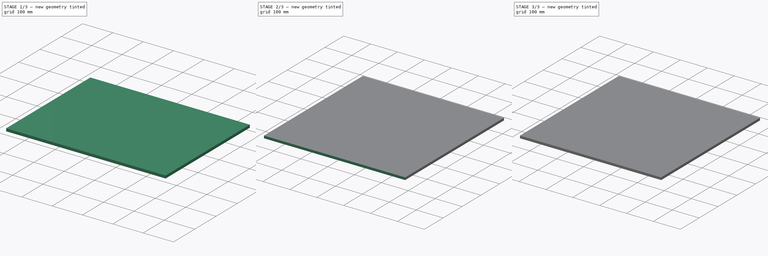
[diagram: build sequence overview — one tinted view per stage of 3, left to right]
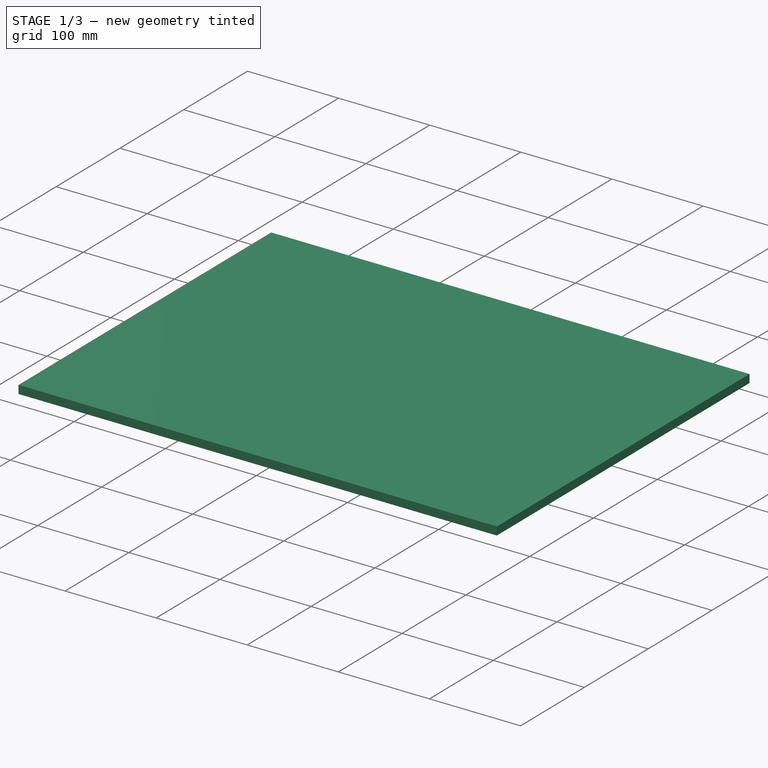
[diagram: stage 1 of 3 — iso view after this stage's code; geometry added in this stage tinted green]
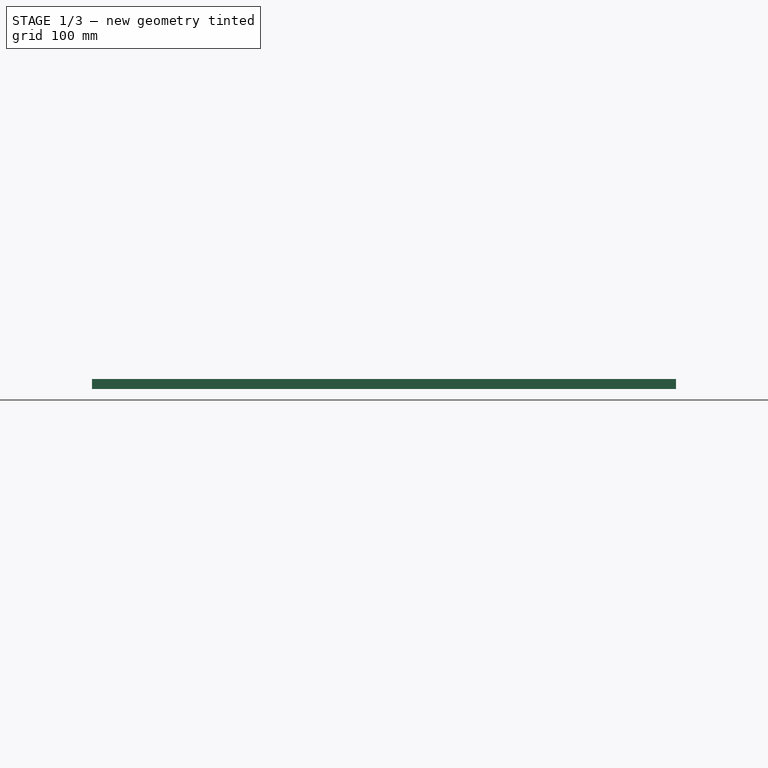
[diagram: stage 1 of 3 — front view after this stage's code; geometry added in this stage tinted green]
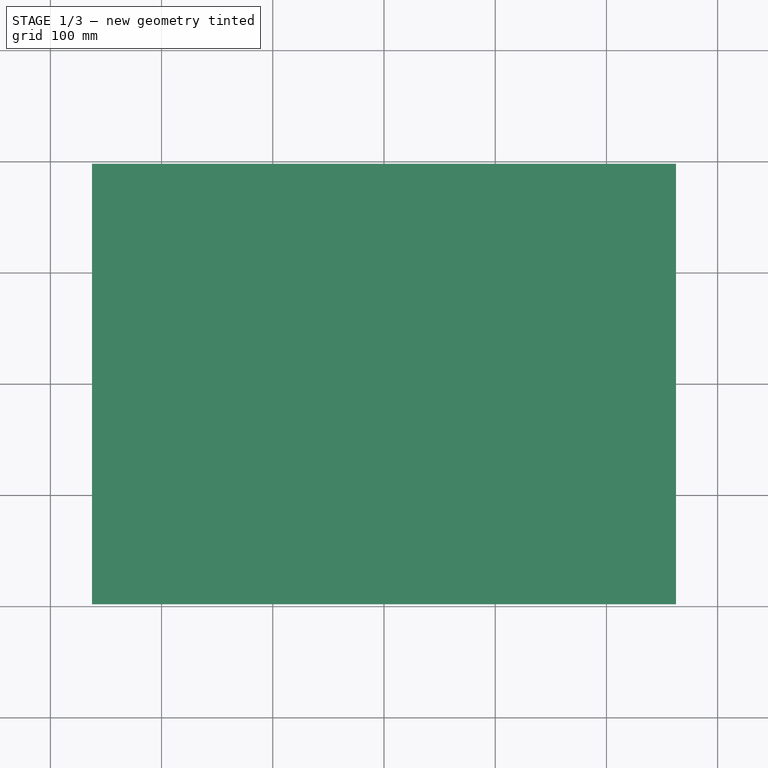
[diagram: stage 1 of 3 — top view after this stage's code; geometry added in this stage tinted green]
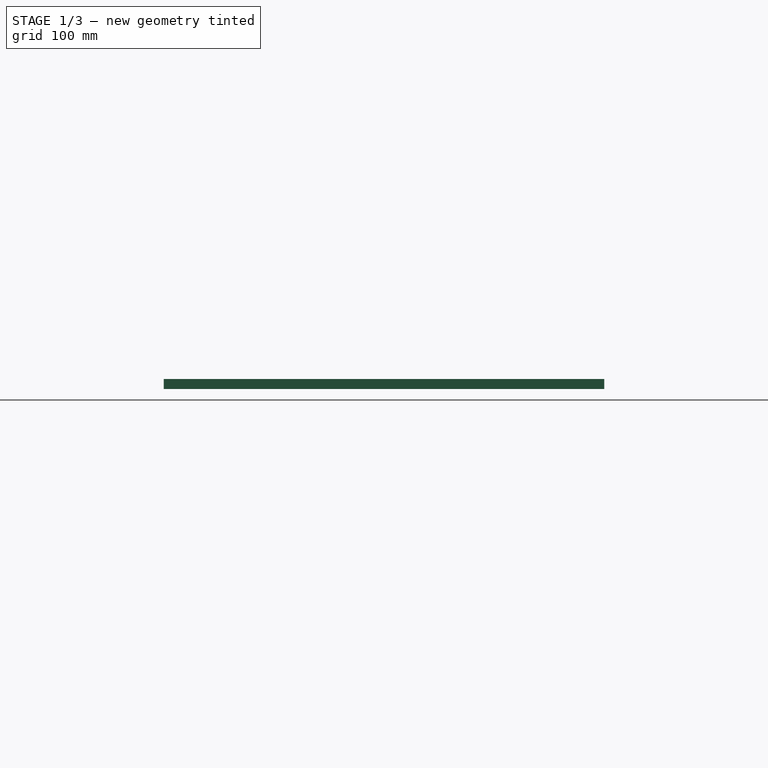
[diagram: stage 1 of 3 — right view after this stage's code; geometry added in this stage tinted green]
FCSTD DOCUMENT  (FreeCAD 0.19R22756 (Git))
Label: storage-matrix
License: All rights reserved
LicenseURL: http://en.wikipedia.org/wiki/All_rights_reserved
objects: PartDesign::CoordinateSystem×25, App::Link×14, Sketcher::SketchObject×8, PartDesign::Pad×7, PartDesign::Body×7, App::DocumentObjectGroup×2, App::FeaturePython×1, App::Part×1
note: 54 computed .brp shape members not serialized (recipe doc carries the construction recipe); baked Part::Feature solids carry a one-line shape summary decoded from their .brp

FEATURE [PartDesign::CoordinateSystem] right
  AttacherType = Attacher::AttachEngine3D
  MapMode = 5
  Placement = pos=(0,0,9) rot=(0,0,1;0rad)
  Support = -> [Pad]
FEATURE [PartDesign::Body] small
  Group = -> [LCS_0,Sketch,Pad,right]
  Origin = -> Origin001
  Tip = -> Pad
FEATURE [App::Link] small001
  AssemblyType = Asm4EE
  AttachedBy = #LCS_0
  AttachedTo = Parent Assembly#LCS_Origin
  AttachmentOffset = pos=(0,0,0) rot=(0,1,0;1.5708rad)
  LinkPlacement = pos=(0,0,0) rot=(0,1,0;1.5708rad)
  LinkedObject = -> small
  Placement = pos=(0,0,0) rot=(0,1,0;1.5708rad)
  expr: Placement = LCS_Origin.Placement * AttachmentOffset * LCS_0.Placement ^ -1
FEATURE [App::Link] small002
  AssemblyType = Asm4EE
  AttachedBy = #LCS_0
  AttachedTo = small001#right
  AttachmentOffset = pos=(0,0,120) rot=(0,0,1;0rad)
  LinkPlacement = pos=(129,0,0) rot=(0,1,0;1.5708rad)
  LinkedObject = -> small
  Placement = pos=(129,0,0) rot=(0,1,0;1.5708rad)
  expr: Placement = small001.Placement * right.Placement * AttachmentOffset * LCS_0.Placement ^ -1
FEATURE [App::Link] small003
  AssemblyType = Asm4EE
  AttachedBy = #LCS_0
  AttachedTo = small002#right
  AttachmentOffset = pos=(0,0,120) rot=(0,0,1;0rad)
  LinkPlacement = pos=(258,0,0) rot=(0,1,0;1.5708rad)
  LinkedObject = -> small
  Placement = pos=(258,0,0) rot=(0,1,0;1.5708rad)
  expr: Placement = small002.Placement * right.Placement * AttachmentOffset * LCS_0.Placement ^ -1
FEATURE [PartDesign::CoordinateSystem] LCS_0001
  AttacherType = Attacher::AttachEngine3D
  MapMode = 2
  Support = -> [X_Axis002]
FEATURE [Sketcher::SketchObject] Sketch001
  MapMode = 5
  Support = -> [XY_Plane002]
  expr: Constraints[10] = Constraints[8] / 2
  expr: Constraints[11] = Constraints[9] / 2
  sketch-geometry (4):
    g0: LineSegment StartX=-253.5 StartY=-60 StartZ=0 EndX=253.5 EndY=-60 EndZ=0
    g1: LineSegment StartX=253.5 StartY=-60 StartZ=0 EndX=253.5 EndY=60 EndZ=0
    g2: LineSegment StartX=253.5 StartY=60 StartZ=0 EndX=-253.5 EndY=60 EndZ=0
    g3: LineSegment StartX=-253.5 StartY=60 StartZ=0 EndX=-253.5 EndY=-60 EndZ=0
  constraints (12):
    c: Coincident(g0,g1)
    c: Coincident(g1,g2)
    c: Coincident(g2,g3)
    c: Coincident(g3,g0)
    c: Horizontal(g0)
    c: Horizontal(g2)
    c: Vertical(g1)
    c: Vertical(g3)
    c: Distance(g2) = 507
    c: Distance(g1) = 120
    c: Distance(g2,g-2) = 253.5
    c: Distance(g1,g-1) = 60
FEATURE [PartDesign::Pad] Pad001
  Direction = (1,1,1)
  Length = 9
  Length2 = 100
  Profile = -> Sketch001
  Type = 0
FEATURE [PartDesign::CoordinateSystem] top003
  AttacherType = Attacher::AttachEngine3D
  MapMode = 5
  Placement = pos=(-198,0,0) rot=(0.57735,-0.57735,-0.57735;2.0944rad)
  Support = -> [Pad005]
FEATURE [PartDesign::CoordinateSystem] bottom003
  AttacherType = Attacher::AttachEngine3D
  MapMode = 5
  Placement = pos=(198,0,0) rot=(0.57735,0.57735,0.57735;2.0944rad)
  Support = -> [Pad005]
FEATURE [PartDesign::Body] sideMedium
  Group = -> [Sketch006,Pad005,top003,bottom003]
  Origin = -> Origin006
  Tip = -> Pad005
FEATURE [App::Link] sideMedium001
  AssemblyType = Asm4EE
  AttachedBy = #bottom003
  AttachedTo = verticalLarge001#left
  AttachmentOffset = pos=(0,0,0) rot=(1,0,0;1.5708rad)
  LinkPlacement = pos=(-120,7.1e-15,129) rot=(0.707107,0,-0.707107;3.14159rad)
  LinkedObject = -> sideMedium
  Placement = pos=(-120,7.1e-15,129) rot=(0.707107,0,-0.707107;3.14159rad)
  expr: Placement = verticalLarge001.Placement * left.Placement * AttachmentOffset * bottom003.Placement ^ -1
FEATURE [App::Link] sideMedium002
  AssemblyType = Asm4EE
  AttachedBy = #bottom003
  AttachedTo = verticalLarge001#right001
  AttachmentOffset = pos=(0,0,0) rot=(1,0,0;1.5708rad)
  LinkPlacement = pos=(387,-3.55e-14,129) rot=(0,1,0;1.5708rad)
  LinkedObject = -> sideMedium
  Placement = pos=(387,-3.55e-14,129) rot=(0,1,0;1.5708rad)
  expr: Placement = verticalLarge001.Placement * right001.Placement * AttachmentOffset * bottom003.Placement ^ -1
FEATURE [Sketcher::SketchObject] Sketch007
  MapMode = 5
  Support = -> [XY_Plane007]
  expr: Constraints[11] = Constraints[9] / 2
  expr: Constraints[10] = Constraints[8] / 2
  sketch-geometry (4):
    g0: LineSegment StartX=-262.5 StartY=-198 StartZ=0 EndX=262.5 EndY=-198 EndZ=0
    g1: LineSegment StartX=262.5 StartY=-198 StartZ=0 EndX=262.5 EndY=198 EndZ=0
    g2: LineSegment StartX=262.5 StartY=198 StartZ=0 EndX=-262.5 EndY=198 EndZ=0
    g3: LineSegment StartX=-262.5 StartY=198 StartZ=0 EndX=-262.5 EndY=-198 EndZ=0
  constraints (12):
    c: Coincident(g0,g1)
    c: Coincident(g1,g2)
    c: Coincident(g2,g3)
    c: Coincident(g3,g0)
    c: Horizontal(g0)
    c: Horizontal(g2)
    c: Vertical(g1)
    c: Vertical(g3)
    c: Distance(g2) = 525
    c: Distance(g1) = 396
    c: Distance(g2,g-2) = 262.5
    c: Distance(g1,g-1) = 198
FEATURE [PartDesign::Pad] Pad006
  Direction = (1,1,1)
  Length = 9
  Length2 = 100
  Profile = -> Sketch007
  Type = 0
FEATURE [PartDesign::CoordinateSystem] bottom004
  AttacherType = Attacher::AttachEngine3D
  MapMode = 5
  Placement = pos=(0,-198,0) rot=(1,0,0;1.5708rad)
  Support = -> [Pad006]
FEATURE [PartDesign::Body] BackMedium
  Group = -> [Sketch007,Pad006,bottom004]
  Origin = -> Origin007
  Tip = -> Pad006
FEATURE [App::DocumentObjectGroup] Parts
  Group = -> [small,verticalLarge,verticalMedium,verticalLarge003,back003,sideMedium,BackMedium]
FEATURE [App::Link] BackMedium001
  AssemblyType = Asm4EE
  AttachedBy = #bottom004
  AttachedTo = verticalLarge001#back
  AttachmentOffset = pos=(0,0,0) rot=(1,0,0;1.5708rad)
  LinkPlacement = pos=(133.5,60,129) rot=(0,0.707107,0.707107;3.14159rad)
  LinkedObject = -> BackMedium
  Placement = pos=(133.5,60,129) rot=(0,0.707107,0.707107;3.14159rad)
  expr: Placement = verticalLarge001.Placement * back.Placement * AttachmentOffset * bottom004.Placement ^ -1
FEATURE [App::Part] Model  label="Storage"
  Configuration = 0
  Group = -> [LCS_Origin,Constraints,Variables,small001,small002,small003,verticalLarge001,verticalLarge002,small004,small005,small006,horizontalLarge,small008,horizontalLarge001,sideMedium001,sideMedium002,BackMedium001]
  Origin = -> Origin
  Type = Assembly4 Model
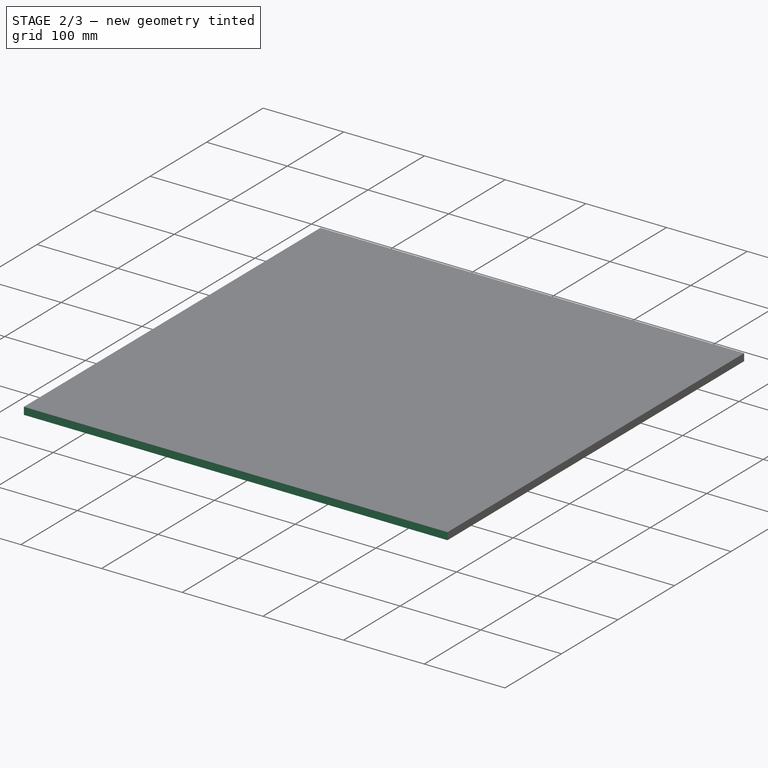
[diagram: stage 2 of 3 — iso view after this stage's code; geometry added in this stage tinted green]
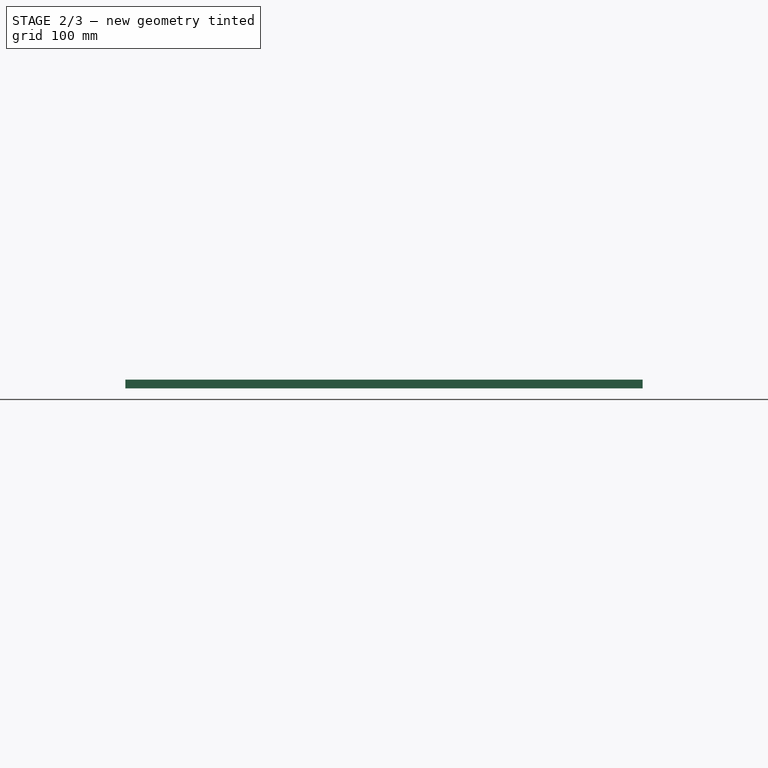
[diagram: stage 2 of 3 — front view after this stage's code; geometry added in this stage tinted green]
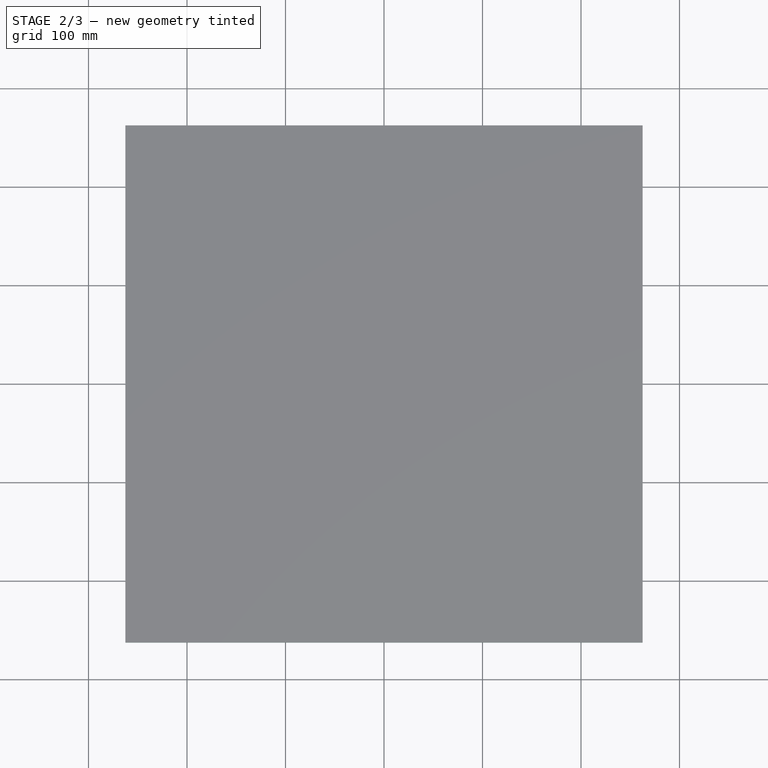
[diagram: stage 2 of 3 — top view after this stage's code; geometry added in this stage tinted green]
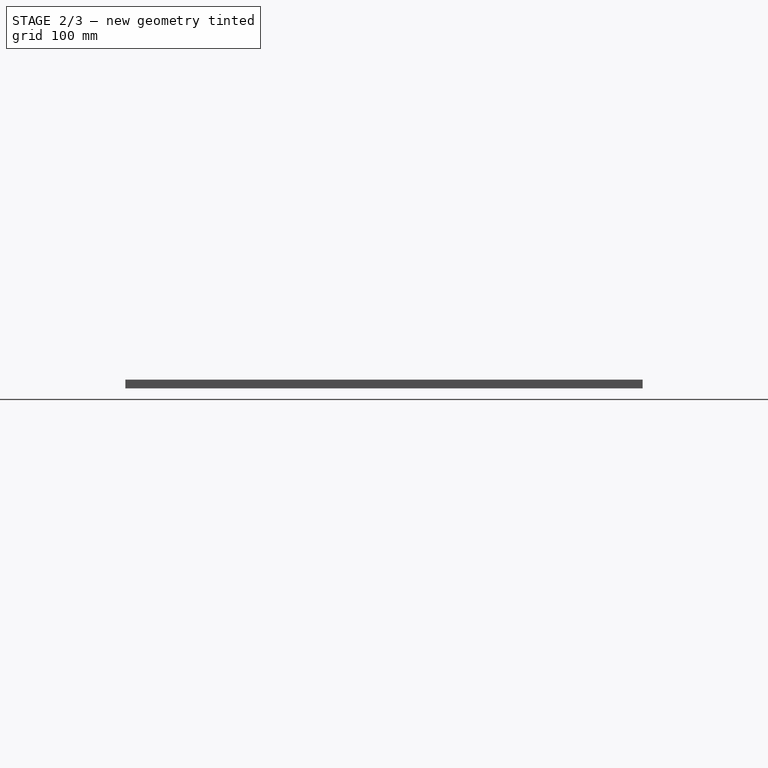
[diagram: stage 2 of 3 — right view after this stage's code; geometry added in this stage tinted green]
FEATURE [PartDesign::CoordinateSystem] LCS_Origin
  AttacherType = Attacher::AttachEngine3D
  MapMode = 2
  Support = -> [X_Axis]
FEATURE [App::DocumentObjectGroup] Constraints
FEATURE [App::FeaturePython] Variables  # WARN: FeaturePython — macro-defined, semantics opaque (R4)
FEATURE [PartDesign::CoordinateSystem] LCS_0
  AttacherType = Attacher::AttachEngine3D
  MapMode = 2
  Support = -> [X_Axis001]
FEATURE [Sketcher::SketchObject] Sketch
  MapMode = 5
  Support = -> [XY_Plane001]
  expr: Constraints[9] = Constraints[8]
  expr: Constraints[10] = Constraints[8] / 2
  expr: Constraints[11] = Constraints[8] / 2
  sketch-geometry (4):
    g0: LineSegment StartX=-60 StartY=-60 StartZ=0 EndX=60 EndY=-60 EndZ=0
    g1: LineSegment StartX=60 StartY=-60 StartZ=0 EndX=60 EndY=60 EndZ=0
    g2: LineSegment StartX=60 StartY=60 StartZ=0 EndX=-60 EndY=60 EndZ=0
    g3: LineSegment StartX=-60 StartY=60 StartZ=0 EndX=-60 EndY=-60 EndZ=0
  constraints (12):
    c: Coincident(g0,g1)
    c: Coincident(g1,g2)
    c: Coincident(g2,g3)
    c: Coincident(g3,g0)
    c: Horizontal(g0)
    c: Horizontal(g2)
    c: Vertical(g1)
    c: Vertical(g3)
    c: Distance(g2) = 120
    c: Distance(g1) = 120
    c: Distance(g2,g-1) = 60
    c: Distance(g1,g-2) = 60
FEATURE [PartDesign::Pad] Pad
  Direction = (1,1,1)
  Length = 9
  Length2 = 100
  Profile = -> Sketch
  Type = 0
FEATURE [PartDesign::CoordinateSystem] top002
  AttacherType = Attacher::AttachEngine3D
  MapMode = 5
  Placement = pos=(-262.5,0,0) rot=(0.57735,-0.57735,-0.57735;2.0944rad)
  Support = -> [Pad003]
FEATURE [PartDesign::CoordinateSystem] bottom001
  AttacherType = Attacher::AttachEngine3D
  MapMode = 5
  Placement = pos=(262.5,0,0) rot=(0.57735,0.57735,0.57735;2.0944rad)
  Support = -> [Pad003]
FEATURE [PartDesign::CoordinateSystem] left002
  AttacherType = Attacher::AttachEngine3D
  MapMode = 5
  Placement = pos=(0,0,0) rot=(1,0,0;3.14159rad)
  Support = -> [Pad003]
FEATURE [PartDesign::CoordinateSystem] right003
  AttacherType = Attacher::AttachEngine3D
  MapMode = 5
  Placement = pos=(0,0,9) rot=(0,0,1;0rad)
  Support = -> [Pad003]
FEATURE [PartDesign::CoordinateSystem] front001
  AttacherType = Attacher::AttachEngine3D
  MapMode = 5
  Placement = pos=(0,-60,0) rot=(1,0,0;1.5708rad)
  Support = -> [Pad003]
FEATURE [PartDesign::CoordinateSystem] back002
  AttacherType = Attacher::AttachEngine3D
  Support = -> [Pad003]
FEATURE [PartDesign::Body] verticalLarge003
  Group = -> [Sketch004,Pad003,top002,bottom001,left002,right003,front001,back002]
  Origin = -> Origin004
  Tip = -> Pad003
FEATURE [PartDesign::CoordinateSystem] LCS_0002
  AttacherType = Attacher::AttachEngine3D
  MapMode = 2
  Support = -> [X_Axis005]
FEATURE [Sketcher::SketchObject] Sketch005
  MapMode = 5
  Support = -> [XY_Plane005]
  expr: Constraints[10] = Constraints[8] / 2
  expr: Constraints[11] = Constraints[9] / 2
  sketch-geometry (4):
    g0: LineSegment StartX=-262.5 StartY=-262.5 StartZ=0 EndX=262.5 EndY=-262.5 EndZ=0
    g1: LineSegment StartX=262.5 StartY=-262.5 StartZ=0 EndX=262.5 EndY=262.5 EndZ=0
    g2: LineSegment StartX=262.5 StartY=262.5 StartZ=0 EndX=-262.5 EndY=262.5 EndZ=0
    g3: LineSegment StartX=-262.5 StartY=262.5 StartZ=0 EndX=-262.5 EndY=-262.5 EndZ=0
  constraints (12):
    c: Coincident(g0,g1)
    c: Coincident(g1,g2)
    c: Coincident(g2,g3)
    c: Coincident(g3,g0)
    c: Horizontal(g0)
    c: Horizontal(g2)
    c: Vertical(g1)
    c: Vertical(g3)
    c: Distance(g2) = 525
    c: Distance(g1) = 525
    c: Distance(g2,g-2) = 262.5
    c: Distance(g1,g-1) = 262.5
FEATURE [PartDesign::Pad] Pad004
  Direction = (1,1,1)
  Length = 9
  Length2 = 100
  Profile = -> Sketch005
  Type = 0
FEATURE [PartDesign::CoordinateSystem] bottom002
  AttacherType = Attacher::AttachEngine3D
  MapMode = 5
  Placement = pos=(0,-262.5,0) rot=(1,0,0;1.5708rad)
  Support = -> [Pad004]
FEATURE [PartDesign::Body] back003
  Group = -> [LCS_0002,Sketch005,Pad004,bottom002]
  Origin = -> Origin005
  Tip = -> Pad004
FEATURE [Sketcher::SketchObject] Sketch006
  MapMode = 5
  Support = -> [XY_Plane006]
  expr: Constraints[11] = Constraints[8] / 2
  expr: Constraints[10] = Constraints[9] / 2
  sketch-geometry (4):
    g0: LineSegment StartX=-198 StartY=-60 StartZ=0 EndX=198 EndY=-60 EndZ=0
    g1: LineSegment StartX=198 StartY=-60 StartZ=0 EndX=198 EndY=60 EndZ=0
    g2: LineSegment StartX=198 StartY=60 StartZ=0 EndX=-198 EndY=60 EndZ=0
    g3: LineSegment StartX=-198 StartY=60 StartZ=0 EndX=-198 EndY=-60 EndZ=0
  constraints (12):
    c: Coincident(g0,g1)
    c: Coincident(g1,g2)
    c: Coincident(g2,g3)
    c: Coincident(g3,g0)
    c: Horizontal(g0)
    c: Horizontal(g2)
    c: Vertical(g1)
    c: Vertical(g3)
    c: Distance(g2) = 396
    c: Distance(g1) = 120
    c: Distance(g2,g-1) = 60
    c: Distance(g2,g-2) = 198
FEATURE [PartDesign::Pad] Pad005
  Direction = (1,1,1)
  Length = 9
  Length2 = 100
  Profile = -> Sketch006
  Type = 0
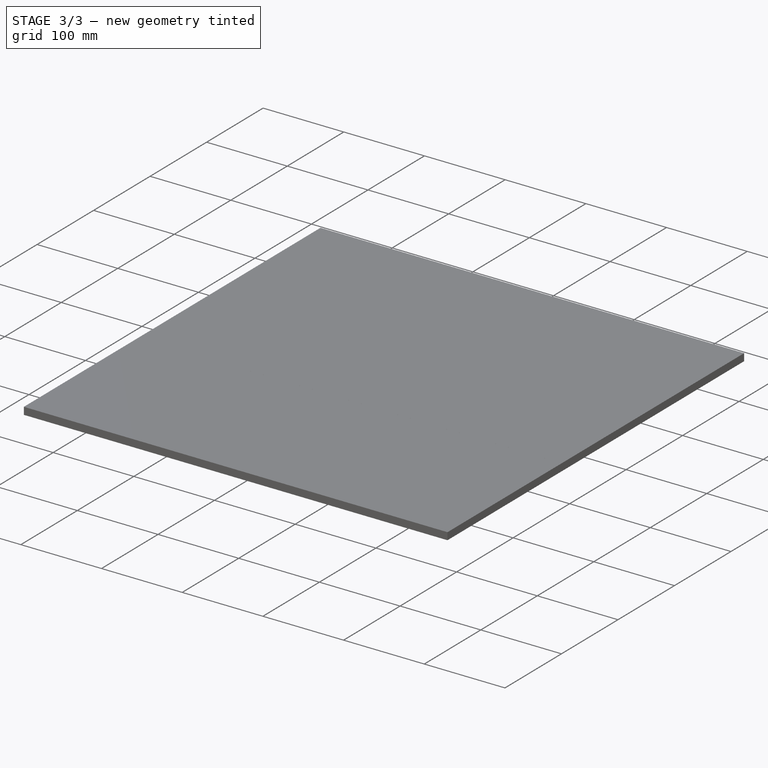
[diagram: stage 3 of 3 — iso view after this stage's code; geometry added in this stage tinted green]
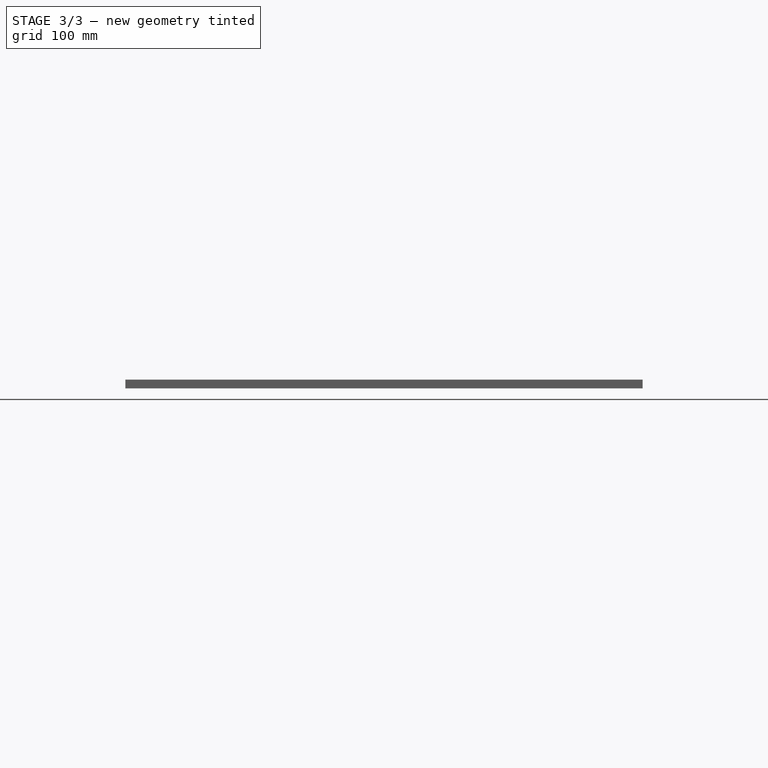
[diagram: stage 3 of 3 — front view after this stage's code; geometry added in this stage tinted green]
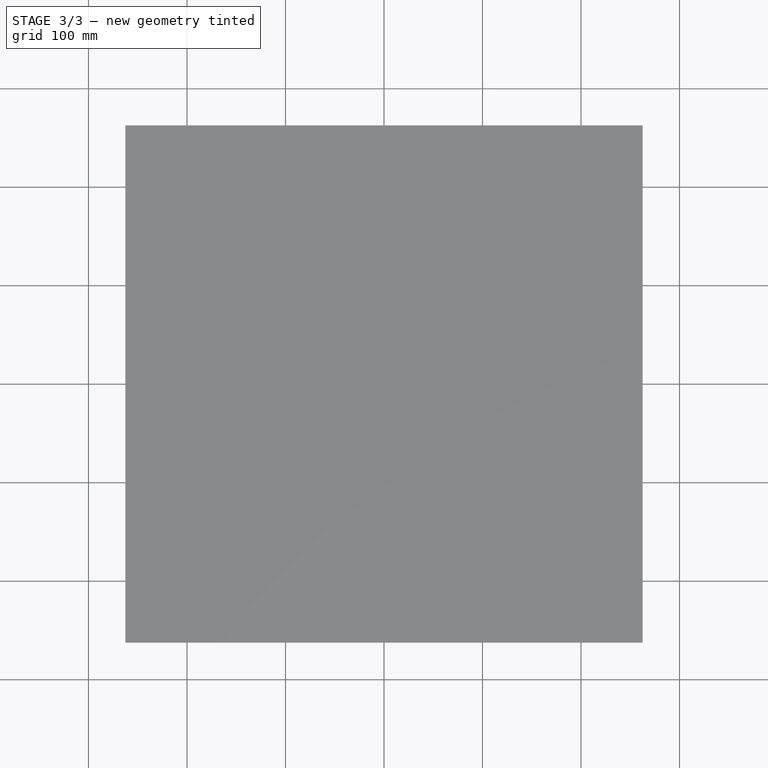
[diagram: stage 3 of 3 — top view after this stage's code; geometry added in this stage tinted green]
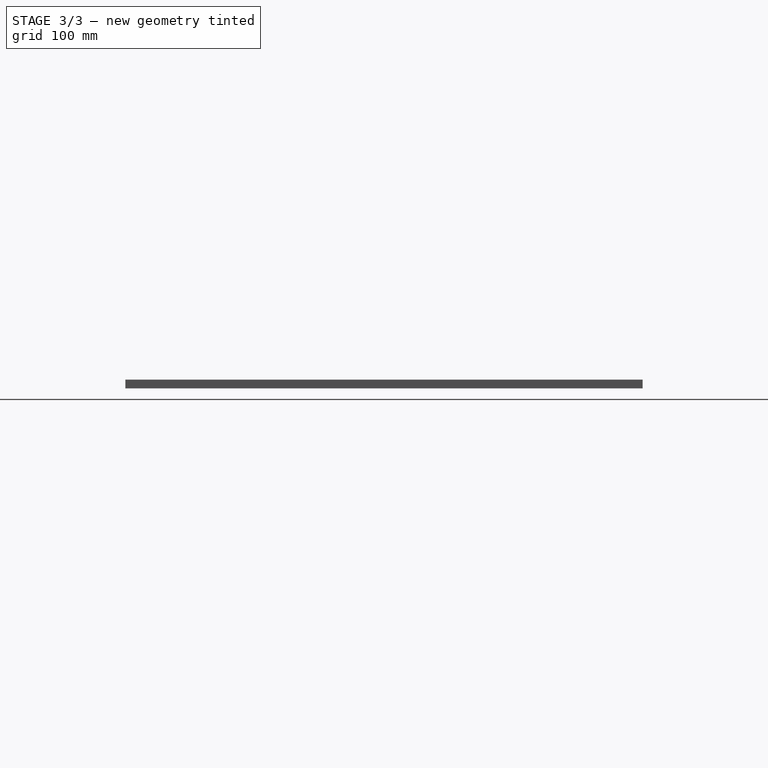
[diagram: stage 3 of 3 — right view after this stage's code; geometry added in this stage tinted green]
FEATURE [PartDesign::CoordinateSystem] top
  AttacherType = Attacher::AttachEngine3D
  MapMode = 5
  Placement = pos=(0,0,9) rot=(0,0,1;0rad)
  Support = -> [Pad001]
FEATURE [PartDesign::CoordinateSystem] left
  AttacherType = Attacher::AttachEngine3D
  MapMode = 5
  Placement = pos=(-253.5,0,0) rot=(0.57735,-0.57735,-0.57735;2.0944rad)
  Support = -> [Pad001]
FEATURE [PartDesign::CoordinateSystem] right001
  AttacherType = Attacher::AttachEngine3D
  MapMode = 5
  Placement = pos=(253.5,0,0) rot=(0.57735,0.57735,0.57735;2.0944rad)
  Support = -> [Pad001]
FEATURE [PartDesign::CoordinateSystem] back
  AttacherType = Attacher::AttachEngine3D
  MapMode = 5
  Placement = pos=(0,60,0) rot=(0,0.707107,0.707107;3.14159rad)
  Support = -> [Pad001]
FEATURE [PartDesign::Body] verticalLarge  label="horizontalLarge"
  Group = -> [LCS_0001,Sketch001,Pad001,top,left,right001,back]
  Origin = -> Origin002
  Tip = -> Pad001
FEATURE [App::Link] verticalLarge001  label="horizontalLarge001"
  AssemblyType = Asm4EE
  AttachedBy = #left
  AttachedTo = small001#LCS_0
  AttachmentOffset = pos=(69,0,-120) rot=(0.707107,-0.707107,0;3.14159rad)
  LinkPlacement = pos=(133.5,-1.42e-14,-69) rot=(0,0,1;0rad)
  LinkedObject = -> verticalLarge
  Placement = pos=(133.5,-1.42e-14,-69) rot=(0,0,1;0rad)
  expr: Placement = small001.Placement * LCS_0.Placement * AttachmentOffset * left.Placement ^ -1
FEATURE [App::Link] verticalLarge002  label="horizontalLarge002"
  AssemblyType = Asm4EE
  AttachedBy = #left
  AttachedTo = verticalLarge001#left
  AttachmentOffset = pos=(0,129,0) rot=(0,0,1;0rad)
  LinkPlacement = pos=(133.5,-2.84e-14,60) rot=(0,0,1;0rad)
  LinkedObject = -> verticalLarge
  Placement = pos=(133.5,-2.84e-14,60) rot=(0,0,1;0rad)
  expr: Placement = verticalLarge001.Placement * left.Placement * AttachmentOffset * left.Placement ^ -1
FEATURE [App::Link] small004
  AssemblyType = Asm4EE
  AttachedBy = #LCS_0
  AttachedTo = small001#LCS_0
  AttachmentOffset = pos=(-129,0,0) rot=(0,0,1;0rad)
  LinkPlacement = pos=(0,0,129) rot=(0,1,0;1.5708rad)
  LinkedObject = -> small
  Placement = pos=(0,0,129) rot=(0,1,0;1.5708rad)
  expr: Placement = small001.Placement * LCS_0.Placement * AttachmentOffset * LCS_0.Placement ^ -1
FEATURE [Sketcher::SketchObject] Sketch002
  MapMode = 5
  Support = -> [XY_Plane003]
  expr: Constraints[10] = Constraints[8] / 2
  expr: Constraints[11] = Constraints[9] / 2
  sketch-geometry (4):
    g0: LineSegment StartX=-124.5 StartY=-60 StartZ=0 EndX=124.5 EndY=-60 EndZ=0
    g1: LineSegment StartX=124.5 StartY=-60 StartZ=0 EndX=124.5 EndY=60 EndZ=0
    g2: LineSegment StartX=124.5 StartY=60 StartZ=0 EndX=-124.5 EndY=60 EndZ=0
    g3: LineSegment StartX=-124.5 StartY=60 StartZ=0 EndX=-124.5 EndY=-60 EndZ=0
  constraints (12):
    c: Coincident(g0,g1)
    c: Coincident(g1,g2)
    c: Coincident(g2,g3)
    c: Coincident(g3,g0)
    c: Horizontal(g0)
    c: Horizontal(g2)
    c: Vertical(g1)
    c: Vertical(g3)
    c: Distance(g2) = 249
    c: Distance(g1) = 120
    c: Distance(g2,g-2) = 124.5
    c: Distance(g1,g-1) = 60
FEATURE [PartDesign::Pad] Pad002
  Direction = (1,1,1)
  Length = 9
  Length2 = 100
  Profile = -> Sketch002
  Type = 0
FEATURE [PartDesign::CoordinateSystem] top001
  AttacherType = Attacher::AttachEngine3D
  MapMode = 5
  Placement = pos=(0,0,9) rot=(0,0,1;0rad)
  Support = -> [Pad002]
FEATURE [PartDesign::CoordinateSystem] bottom
  AttacherType = Attacher::AttachEngine3D
  MapMode = 5
  Placement = pos=(0,0,0) rot=(1,0,0;3.14159rad)
  Support = -> [Pad002]
FEATURE [PartDesign::CoordinateSystem] left001
  AttacherType = Attacher::AttachEngine3D
  MapMode = 5
  Placement = pos=(-124.5,0,0) rot=(0.57735,-0.57735,-0.57735;2.0944rad)
  Support = -> [Pad002]
FEATURE [PartDesign::CoordinateSystem] right002
  AttacherType = Attacher::AttachEngine3D
  MapMode = 5
  Placement = pos=(124.5,0,0) rot=(0.57735,0.57735,0.57735;2.0944rad)
  Support = -> [Pad002]
FEATURE [PartDesign::CoordinateSystem] front
  AttacherType = Attacher::AttachEngine3D
  MapMode = 5
  Placement = pos=(0,-60,0) rot=(1,0,0;1.5708rad)
  Support = -> [Pad002]
FEATURE [PartDesign::CoordinateSystem] back001
  AttacherType = Attacher::AttachEngine3D
  MapMode = 5
  Placement = pos=(0,60,0) rot=(0,0.707107,0.707107;3.14159rad)
  Support = -> [Pad002]
FEATURE [App::Link] small005
  AssemblyType = Asm4EE
  AttachedBy = #LCS_0
  AttachedTo = small004#right
  AttachmentOffset = pos=(0,0,120) rot=(0,0,1;0rad)
  LinkPlacement = pos=(129,0,129) rot=(0,1,0;1.5708rad)
  LinkedObject = -> small
  Placement = pos=(129,0,129) rot=(0,1,0;1.5708rad)
  expr: Placement = small004.Placement * right.Placement * AttachmentOffset * LCS_0.Placement ^ -1
FEATURE [App::Link] small006
  AssemblyType = Asm4EE
  AttachedBy = #LCS_0
  AttachedTo = small005#right
  AttachmentOffset = pos=(0,0,120) rot=(0,0,1;0rad)
  LinkPlacement = pos=(258,0,129) rot=(0,1,0;1.5708rad)
  LinkedObject = -> small
  Placement = pos=(258,0,129) rot=(0,1,0;1.5708rad)
  expr: Placement = small005.Placement * right.Placement * AttachmentOffset * LCS_0.Placement ^ -1
FEATURE [App::Link] horizontalLarge  label="horizontalLarge003"
  AssemblyType = Asm4EE
  AttachedBy = #left
  AttachedTo = verticalLarge002#left
  AttachmentOffset = pos=(0,129,0) rot=(0,0,1;0rad)
  LinkPlacement = pos=(133.5,-1.45e-14,189) rot=(0,0,1;0rad)
  LinkedObject = -> verticalLarge
  Placement = pos=(133.5,-1.45e-14,189) rot=(0,0,1;0rad)
  expr: Placement = verticalLarge002.Placement * left.Placement * AttachmentOffset * left.Placement ^ -1
FEATURE [App::Link] small008
  AssemblyType = Asm4EE
  AttachedBy = #right
  AttachedTo = small005#right
  AttachmentOffset = pos=(-129,0,0) rot=(0,0,1;0rad)
  LinkPlacement = pos=(129,0,258) rot=(0,1,0;1.5708rad)
  LinkedObject = -> small
  Placement = pos=(129,0,258) rot=(0,1,0;1.5708rad)
  expr: Placement = small005.Placement * right.Placement * AttachmentOffset * right.Placement ^ -1
FEATURE [App::Link] horizontalLarge001  label="horizontalLarge004"
  AssemblyType = Asm4EE
  AttachedBy = #left
  AttachedTo = horizontalLarge#left
  AttachmentOffset = pos=(0,129,0) rot=(0,0,1;0rad)
  LinkPlacement = pos=(133.5,-5e-16,318) rot=(0,0,1;0rad)
  LinkedObject = -> verticalLarge
  Placement = pos=(133.5,-5e-16,318) rot=(0,0,1;0rad)
  expr: Placement = horizontalLarge.Placement * left.Placement * AttachmentOffset * left.Placement ^ -1
FEATURE [Sketcher::SketchObject] Sketch003
  MapMode = 5
  Support = -> [XY_Plane003]
FEATURE [PartDesign::Body] verticalMedium
  Group = -> [Sketch002,Pad002,top001,bottom,left001,right002,front,back001,Sketch003]
  Origin = -> Origin003
  Tip = -> Pad002
FEATURE [Sketcher::SketchObject] Sketch004
  MapMode = 5
  Support = -> [XY_Plane004]
  expr: Constraints[10] = Constraints[8] / 2
  expr: Constraints[11] = Constraints[9] / 2
  sketch-geometry (4):
    g0: LineSegment StartX=-262.5 StartY=-60 StartZ=0 EndX=262.5 EndY=-60 EndZ=0
    g1: LineSegment StartX=262.5 StartY=-60 StartZ=0 EndX=262.5 EndY=60 EndZ=0
    g2: LineSegment StartX=262.5 StartY=60 StartZ=0 EndX=-262.5 EndY=60 EndZ=0
    g3: LineSegment StartX=-262.5 StartY=60 StartZ=0 EndX=-262.5 EndY=-60 EndZ=0
  constraints (12):
    c: Coincident(g0,g1)
    c: Coincident(g1,g2)
    c: Coincident(g2,g3)
    c: Coincident(g3,g0)
    c: Horizontal(g0)
    c: Horizontal(g2)
    c: Vertical(g1)
    c: Vertical(g3)
    c: Distance(g2) = 525
    c: Distance(g1) = 120
    c: Distance(g2,g-2) = 262.5
    c: Distance(g1,g-1) = 60
FEATURE [PartDesign::Pad] Pad003
  Direction = (1,1,1)
  Length = 9
  Length2 = 100
  Profile = -> Sketch004
  Type = 0
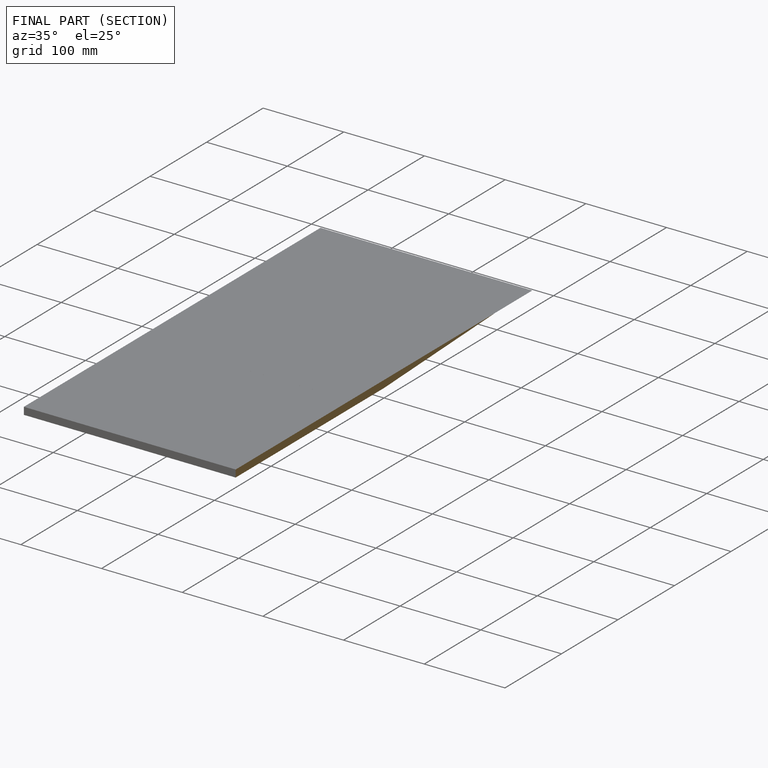
[diagram: finished part — half-section view (interior)]
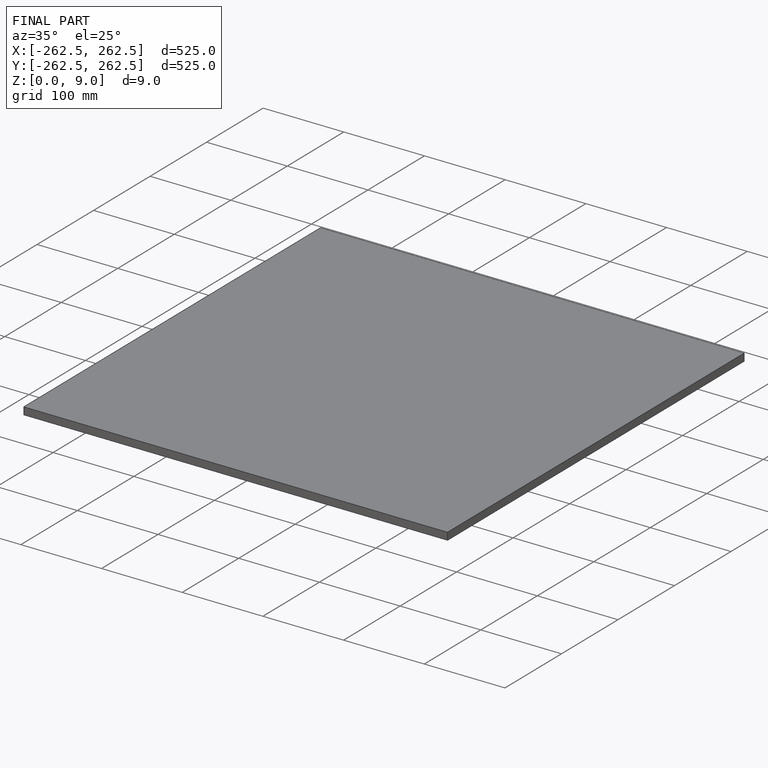
[diagram: finished part — iso view with bounding-box wireframe]
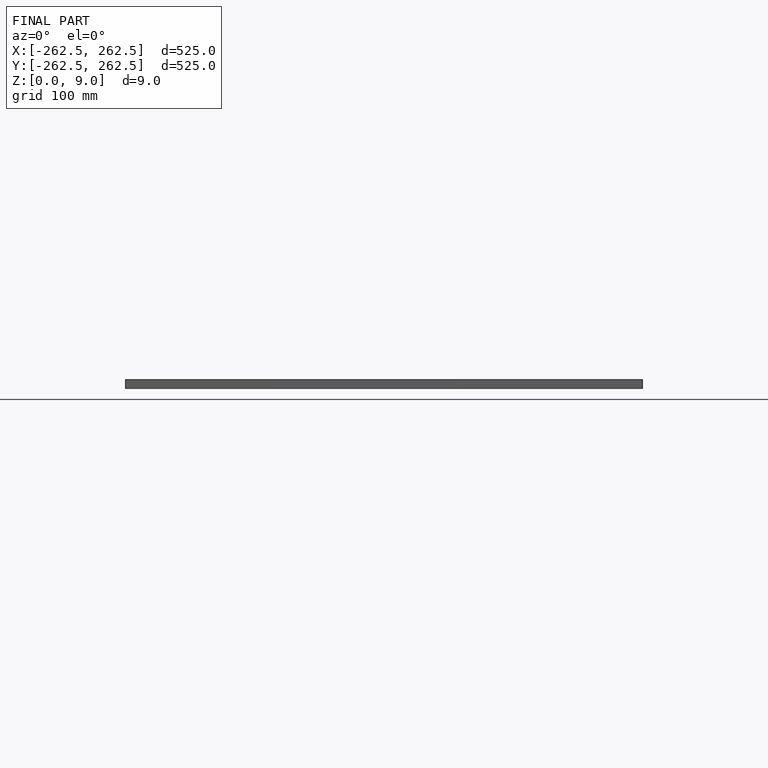
[diagram: finished part — front view with bounding-box wireframe]
